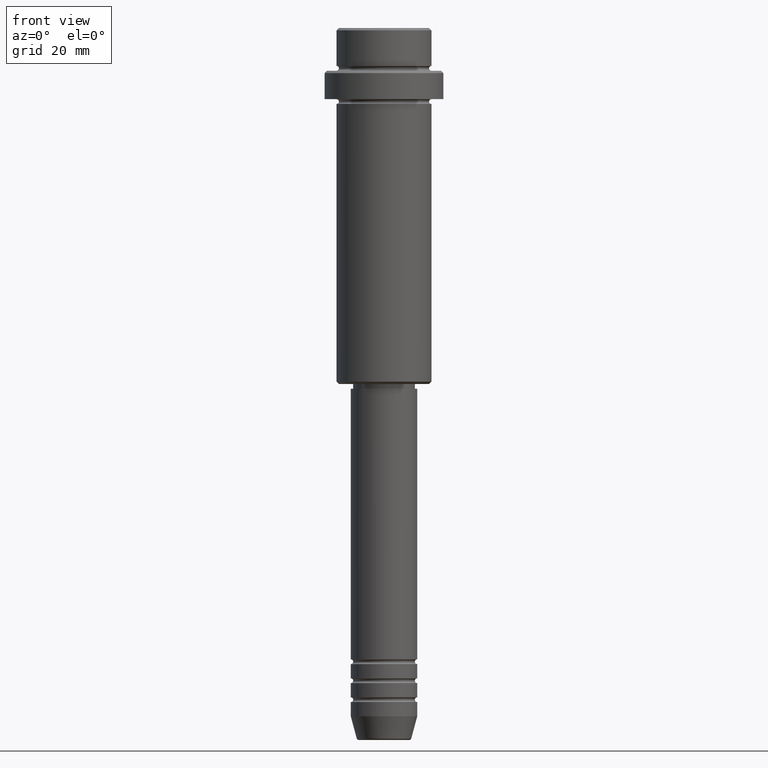
[diagram: clean part render]
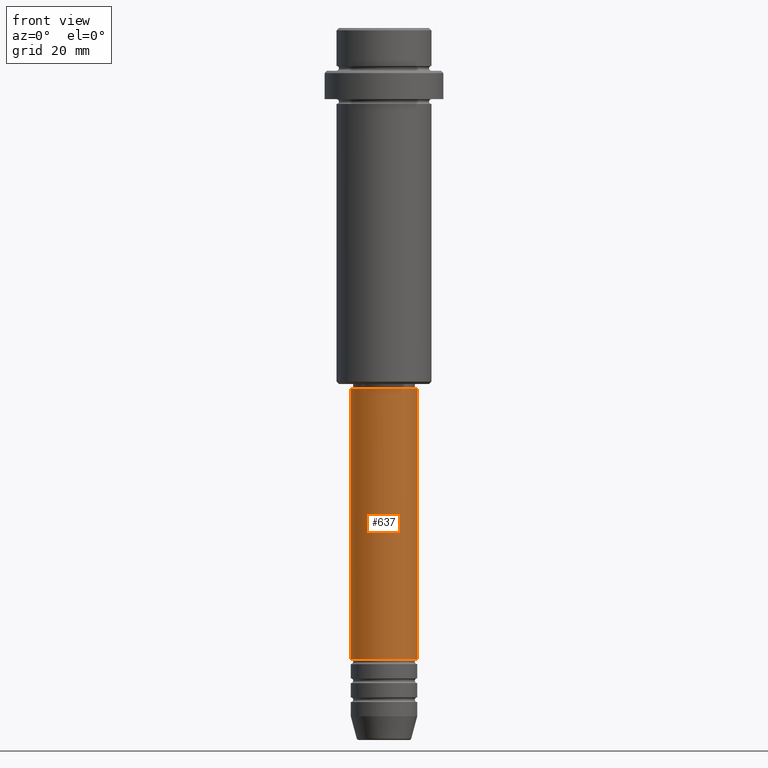
[diagram: same view with one face highlighted and labeled with its STEP entity id]
A machine part, front view. The second image highlights one B-rep face of the part: STEP entity #637.
In plain terms, the highlighted cylindrical surface (edge-blend (fillet) strip) has radius 7 mm, axis along (-0, -0, 1).
Its self-contained STEP definition (entity closure, byte-faithful):
#35 = CYLINDRICAL_SURFACE ( 'NONE', #565, 7.000000000000000000 ) ;
#62 = VECTOR ( 'NONE', #1241, 1000.000000000000000 ) ;
#127 = AXIS2_PLACEMENT_3D ( 'NONE', #1240, #1322, #336 ) ;
#135 = CARTESIAN_POINT ( 'NONE',  ( 7.000000000000000000, 0.000000000000000000, 0.000000000000000000 ) ) ;
#284 = LINE ( 'NONE', #641, #62 ) ;
#299 = ORIENTED_EDGE ( 'NONE', *, *, #404, .T. ) ;
#306 = EDGE_CURVE ( 'NONE', #604, #402, #284, .T. ) ;
#336 = DIRECTION ( 'NONE',  ( 1.000000000000000000, 0.000000000000000000, 0.000000000000000000 ) ) ;
#402 = VERTEX_POINT ( 'NONE', #797 ) ;
#404 = EDGE_CURVE ( 'NONE', #837, #1061, #1237, .T. ) ;
#470 = DIRECTION ( 'NONE',  ( -0.000000000000000000, -0.000000000000000000, 1.000000000000000000 ) ) ;
#481 = EDGE_LOOP ( 'NONE', ( #702, #850, #299, #1401 ) ) ;
#482 = CARTESIAN_POINT ( 'NONE',  ( 0.000000000000000000, 0.000000000000000000, -75.99999999999998579 ) ) ;
#565 = AXIS2_PLACEMENT_3D ( 'NONE', #1112, #1108, #882 ) ;
#594 = DIRECTION ( 'NONE',  ( 1.000000000000000000, 0.000000000000000000, 0.000000000000000000 ) ) ;
#604 = VERTEX_POINT ( 'NONE', #788 ) ;
#637 = ADVANCED_FACE ( 'NONE', ( #1223 ), #35, .T. ) ;
#641 = CARTESIAN_POINT ( 'NONE',  ( -7.000000000000000000, 8.572527594031473190E-16, 0.000000000000000000 ) ) ;
#671 = EDGE_CURVE ( 'NONE', #604, #837, #1226, .T. ) ;
#702 = ORIENTED_EDGE ( 'NONE', *, *, #306, .F. ) ;
#788 = CARTESIAN_POINT ( 'NONE',  ( -7.000000000000000000, 8.572527594031473190E-16, -132.9999999999998579 ) ) ;
#797 = CARTESIAN_POINT ( 'NONE',  ( -7.000000000000000000, 8.572527594031473190E-16, -75.99999999999998579 ) ) ;
#824 = CARTESIAN_POINT ( 'NONE',  ( 7.000000000000000000, 0.000000000000000000, -132.9999999999998579 ) ) ;
#837 = VERTEX_POINT ( 'NONE', #824 ) ;
#850 = ORIENTED_EDGE ( 'NONE', *, *, #671, .T. ) ;
#867 = EDGE_CURVE ( 'NONE', #402, #1061, #1207, .T. ) ;
#882 = DIRECTION ( 'NONE',  ( 1.000000000000000000, 0.000000000000000000, 0.000000000000000000 ) ) ;
#909 = CARTESIAN_POINT ( 'NONE',  ( 7.000000000000000000, 0.000000000000000000, -75.99999999999998579 ) ) ;
#1061 = VERTEX_POINT ( 'NONE', #909 ) ;
#1108 = DIRECTION ( 'NONE',  ( -0.000000000000000000, -0.000000000000000000, 1.000000000000000000 ) ) ;
#1112 = CARTESIAN_POINT ( 'NONE',  ( 0.000000000000000000, 0.000000000000000000, 0.000000000000000000 ) ) ;
#1207 = CIRCLE ( 'NONE', #1339, 7.000000000000000000 ) ;
#1223 = FACE_OUTER_BOUND ( 'NONE', #481, .T. ) ;
#1226 = CIRCLE ( 'NONE', #127, 7.000000000000000000 ) ;
#1237 = LINE ( 'NONE', #135, #1293 ) ;
#1240 = CARTESIAN_POINT ( 'NONE',  ( 0.000000000000000000, 0.000000000000000000, -132.9999999999998579 ) ) ;
#1241 = DIRECTION ( 'NONE',  ( -0.000000000000000000, -0.000000000000000000, 1.000000000000000000 ) ) ;
#1293 = VECTOR ( 'NONE', #470, 1000.000000000000000 ) ;
#1322 = DIRECTION ( 'NONE',  ( -0.000000000000000000, -0.000000000000000000, 1.000000000000000000 ) ) ;
#1339 = AXIS2_PLACEMENT_3D ( 'NONE', #482, #1358, #594 ) ;
#1358 = DIRECTION ( 'NONE',  ( -0.000000000000000000, -0.000000000000000000, 1.000000000000000000 ) ) ;
#1401 = ORIENTED_EDGE ( 'NONE', *, *, #867, .F. ) ;